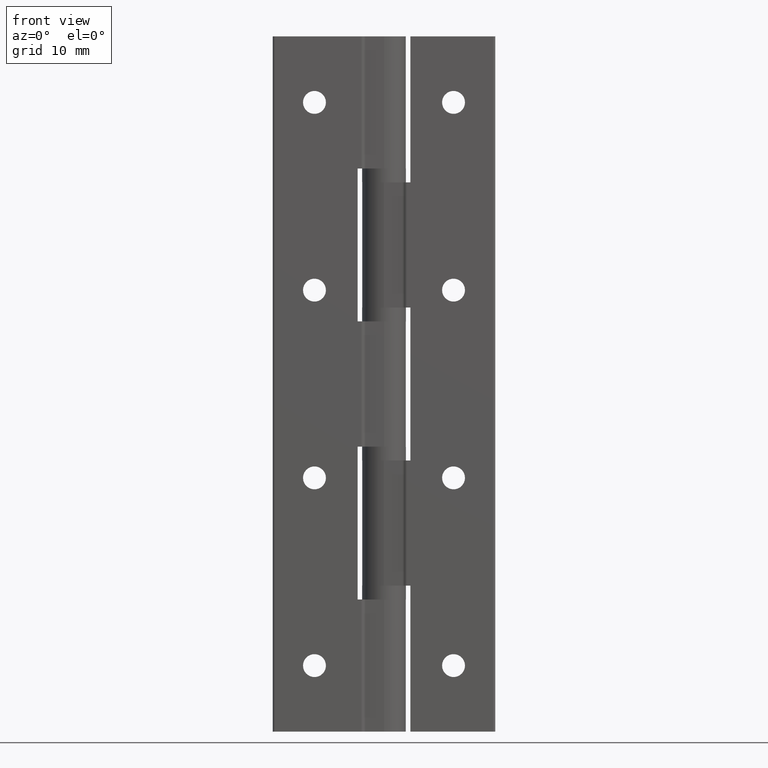
[diagram: clean part render]
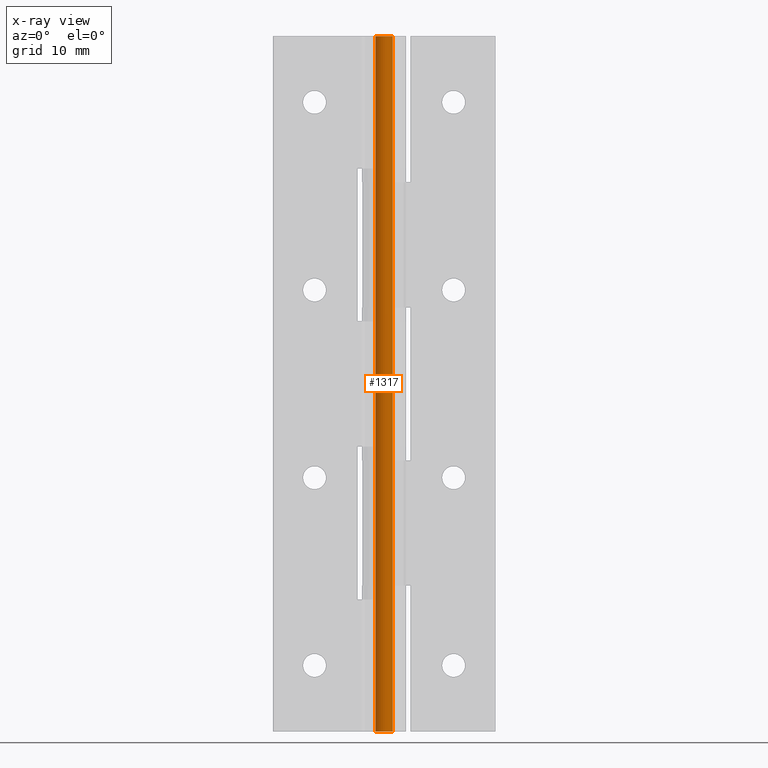
[diagram: x-ray — body ghosted, one internal face saturated and labeled with its STEP entity id]
A machine part, front view, then the same camera in x-ray: the body is ghosted and one INTERNAL B-rep face — a face not visible from any outside direction — is saturated and labeled: STEP entity #1317.
In plain terms, the highlighted cylindrical surface (bore or boss wall) has radius 1.25 mm, axis along (0, 0, -1).
Its self-contained STEP definition (entity closure, byte-faithful):
#83=CYLINDRICAL_SURFACE('',#1443,1.25);
#127=FACE_BOUND('',#373,.T.);
#194=CIRCLE('',#1444,1.25);
#195=CIRCLE('',#1445,1.25);
#268=FACE_OUTER_BOUND('',#372,.T.);
#372=EDGE_LOOP('',(#1089));
#373=EDGE_LOOP('',(#1090));
#680=VERTEX_POINT('',#2145);
#681=VERTEX_POINT('',#2147);
#829=EDGE_CURVE('',#680,#680,#194,.T.);
#830=EDGE_CURVE('',#681,#681,#195,.T.);
#1089=ORIENTED_EDGE('',*,*,#829,.F.);
#1090=ORIENTED_EDGE('',*,*,#830,.T.);
#1317=ADVANCED_FACE('',(#268,#127),#83,.T.);
#1443=AXIS2_PLACEMENT_3D('',#2144,#1742,#1743);
#1444=AXIS2_PLACEMENT_3D('',#2146,#1744,#1745);
#1445=AXIS2_PLACEMENT_3D('',#2148,#1746,#1747);
#1742=DIRECTION('center_axis',(0.,0.,-1.));
#1743=DIRECTION('ref_axis',(-1.,0.,0.));
#1744=DIRECTION('center_axis',(0.,0.,-1.));
#1745=DIRECTION('ref_axis',(-1.,0.,0.));
#1746=DIRECTION('center_axis',(0.,0.,-1.));
#1747=DIRECTION('ref_axis',(-1.,0.,0.));
#2144=CARTESIAN_POINT('Origin',(0.,0.,0.));
#2145=CARTESIAN_POINT('',(1.25,1.53080849893419E-16,-100.));
#2146=CARTESIAN_POINT('Origin',(0.,0.,-100.));
#2147=CARTESIAN_POINT('',(1.25,1.53080849893419E-16,0.));
#2148=CARTESIAN_POINT('Origin',(0.,0.,0.));